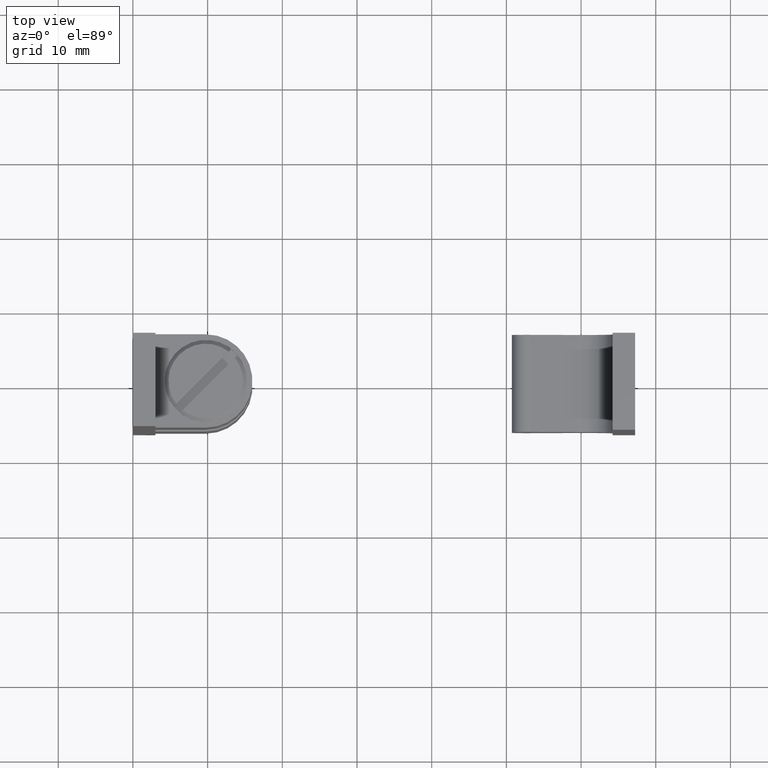
[diagram: clean part render]
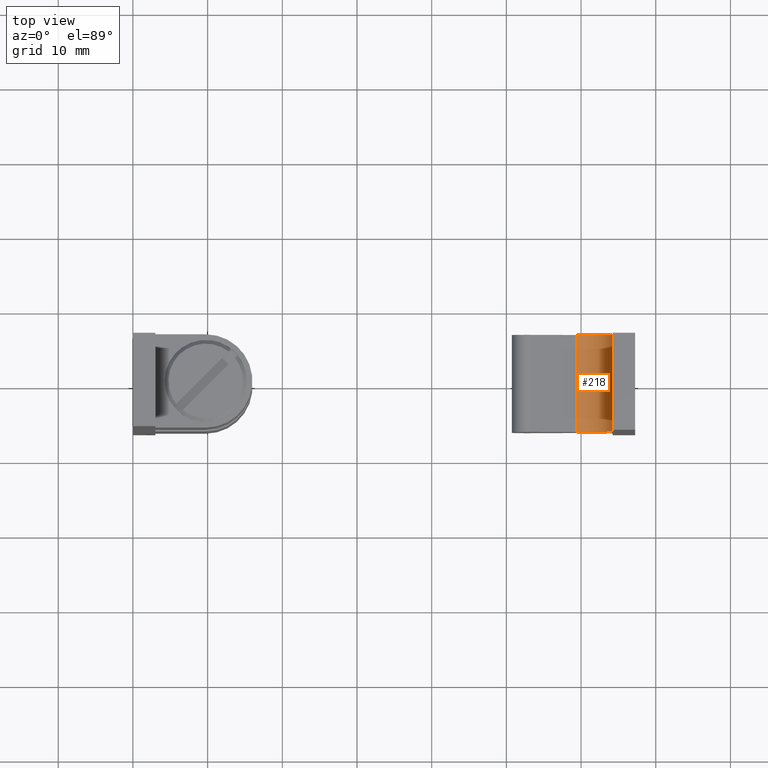
[diagram: same view with one face highlighted and labeled with its STEP entity id]
A machine part, top view. The second image highlights one B-rep face of the part: STEP entity #218.
In plain terms, the highlighted cylindrical surface (edge-blend (fillet) strip) has radius 4.0004 mm, axis along (-0, -1, -0).
Its self-contained STEP definition (entity closure, byte-faithful):
#218=ADVANCED_FACE('',(#417),#416,.F.);
#416=CYLINDRICAL_SURFACE('',#1115,4.00043991056E+00);
#417=FACE_OUTER_BOUND('',#1116,.T.);
#1112=CARTESIAN_POINT('',(6.02334519901E+01,-9.93500000000E+02,7.50048131368E+00));
#1113=DIRECTION('',(-0.00000000000E+00,-1.00000000000E+00,-0.00000000000E+00));
#1114=DIRECTION('',(-6.22514636638E-01,0.00000000000E+00,7.82608156852E-01));
#1115=AXIS2_PLACEMENT_3D('',#1112,#1113,#1114);
#1116=EDGE_LOOP('',(#1524,#1525,#1526,#1527));
#1524=ORIENTED_EDGE('',*,*,#1842,.F.);
#1525=ORIENTED_EDGE('',*,*,#1843,.F.);
#1526=ORIENTED_EDGE('',*,*,#1844,.T.);
#1527=ORIENTED_EDGE('',*,*,#1845,.T.);
#1842=EDGE_CURVE('',#2186,#2187,#2188,.T.);
#1843=EDGE_CURVE('',#2194,#2186,#2195,.T.);
#1844=EDGE_CURVE('',#2194,#2201,#2202,.T.);
#1845=EDGE_CURVE('',#2201,#2187,#2208,.T.);
#2186=VERTEX_POINT('',#3267);
#2187=VERTEX_POINT('',#3268);
#2188=CIRCLE('',#3272,4.00043991056E+00);
#2194=VERTEX_POINT('',#3273);
#2195=LINE('',#3274,#3275);
#2201=VERTEX_POINT('',#3277);
#2202=CIRCLE('',#3281,4.00043991056E+00);
#2208=LINE('',#3282,#3283);
#3267=CARTESIAN_POINT('',(5.93778918717E+01,6.50000000000E+00,3.59260000000E+00));
#3268=CARTESIAN_POINT('',(6.42338918717E+01,6.50000000000E+00,7.50048131368E+00));
#3269=CARTESIAN_POINT('',(6.02334519901E+01,6.50000000000E+00,7.50048131368E+00));
#3270=DIRECTION('',(0.00000000000E+00,-1.00000000000E+00,0.00000000000E+00));
#3271=DIRECTION('',(1.00000000000E+00,0.00000000000E+00,1.83690953073E-16));
#3272=AXIS2_PLACEMENT_3D('',#3269,#3270,#3271);
#3273=CARTESIAN_POINT('',(5.93778918717E+01,-6.50000000000E+00,3.59260000000E+00));
#3274=CARTESIAN_POINT('',(5.93778918717E+01,-6.50000000000E+00,3.59260000000E+00));
#3275=VECTOR('',#3276,1.30000000000E+01);
#3276=DIRECTION('',(0.00000000000E+00,1.00000000000E+00,0.00000000000E+00));
#3277=CARTESIAN_POINT('',(6.42338918717E+01,-6.50000000000E+00,7.50048131368E+00));
#3278=CARTESIAN_POINT('',(6.02334519901E+01,-6.50000000000E+00,7.50048131368E+00));
#3279=DIRECTION('',(0.00000000000E+00,-1.00000000000E+00,0.00000000000E+00));
#3280=DIRECTION('',(1.00000000000E+00,0.00000000000E+00,1.83690953073E-16));
#3281=AXIS2_PLACEMENT_3D('',#3278,#3279,#3280);
#3282=CARTESIAN_POINT('',(6.42338918717E+01,-6.50000000000E+00,7.50048131368E+00));
#3283=VECTOR('',#3284,1.30000000000E+01);
#3284=DIRECTION('',(0.00000000000E+00,1.00000000000E+00,0.00000000000E+00));